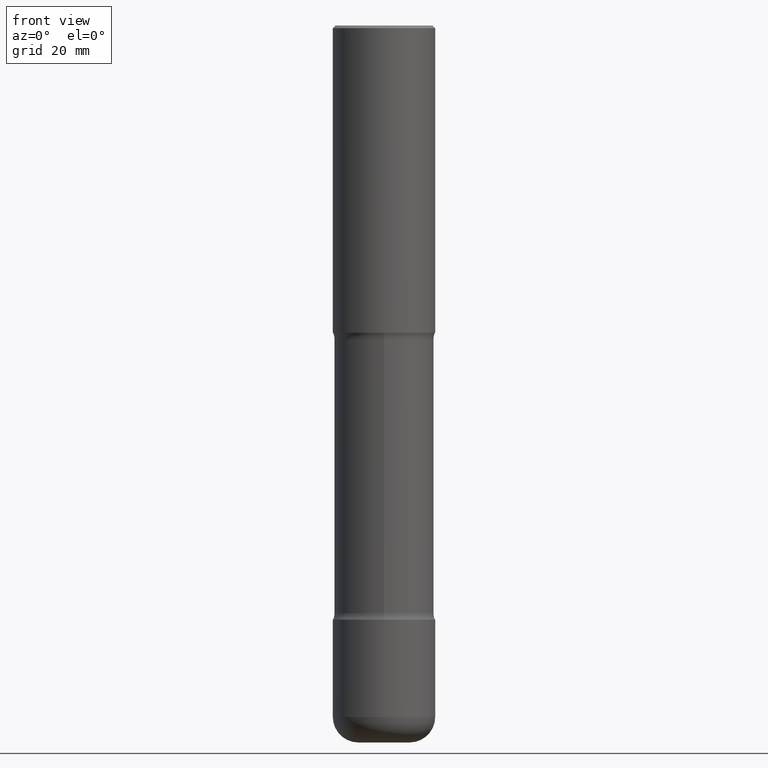
[diagram: clean part render]
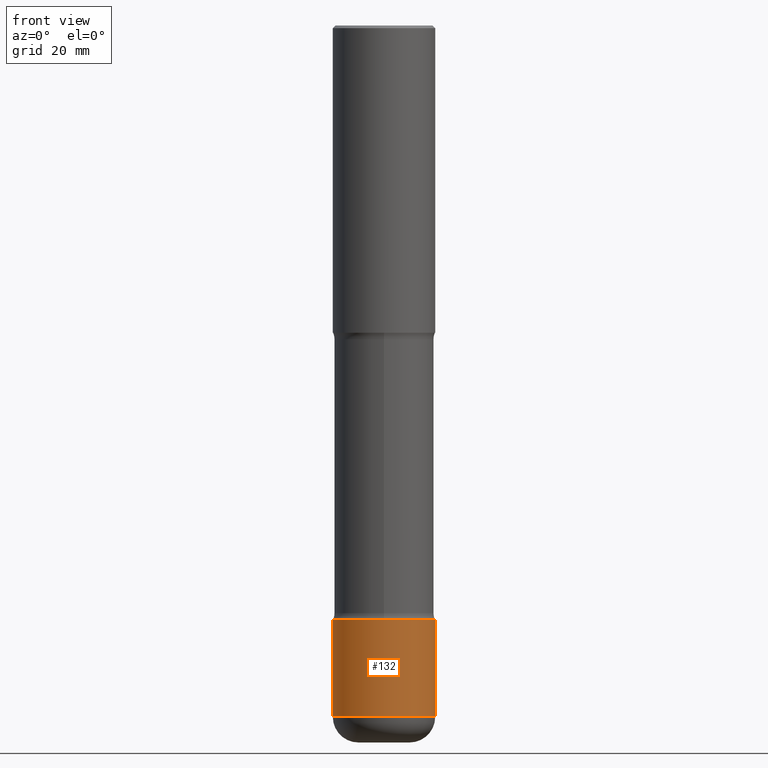
[diagram: same view with one face highlighted and labeled with its STEP entity id]
A machine part, front view. The second image highlights one B-rep face of the part: STEP entity #132.
In plain terms, the highlighted cylindrical surface (partial cylindrical patch) has radius 10 mm, axis along (-0, 0, 1).
Its self-contained STEP definition (entity closure, byte-faithful):
#11 = DIRECTION ( 'NONE',  ( -2.445468806185136597E-29, 3.491481338843145583E-15, 1.000000000000000000 ) ) ;
#28 = AXIS2_PLACEMENT_3D ( 'NONE', #520, #473, #560 ) ;
#78 = ORIENTED_EDGE ( 'NONE', *, *, #552, .F. ) ;
#83 = LINE ( 'NONE', #251, #352 ) ;
#86 = DIRECTION ( 'NONE',  ( -2.445468806185136877E-29, 3.491481338843145188E-15, 1.000000000000000000 ) ) ;
#101 = LINE ( 'NONE', #489, #343 ) ;
#132 = ADVANCED_FACE ( 'NONE', ( #187 ), #281, .T. ) ;
#187 = FACE_OUTER_BOUND ( 'NONE', #316, .T. ) ;
#188 = CARTESIAN_POINT ( 'NONE',  ( 0.000000000000000000, 0.000000000000000000, 0.000000000000000000 ) ) ;
#225 = DIRECTION ( 'NONE',  ( 1.000000000000000000, -6.982962677686270655E-15, 0.000000000000000000 ) ) ;
#246 = VERTEX_POINT ( 'NONE', #424 ) ;
#251 = CARTESIAN_POINT ( 'NONE',  ( -0.3937000000000004940, 2.797406750687517942E-15, -1.936584745033358697E-29 ) ) ;
#268 = DIRECTION ( 'NONE',  ( 1.000000000000000000, -6.982962677686266711E-15, 4.876176775795935793E-29 ) ) ;
#270 = DIRECTION ( 'NONE',  ( -2.445468806185136877E-29, 3.491481338843145188E-15, 1.000000000000000000 ) ) ;
#274 = CIRCLE ( 'NONE', #28, 0.3937000000000006605 ) ;
#281 = CYLINDRICAL_SURFACE ( 'NONE', #383, 0.3937000000000004940 ) ;
#297 = VERTEX_POINT ( 'NONE', #319 ) ;
#299 = CIRCLE ( 'NONE', #398, 0.3937000000000004385 ) ;
#316 = EDGE_LOOP ( 'NONE', ( #504, #484, #547, #78 ) ) ;
#319 = CARTESIAN_POINT ( 'NONE',  ( 0.3937000000000004385, -1.869443853256785070E-14, -4.566900000000000404 ) ) ;
#343 = VECTOR ( 'NONE', #270, 39.37007874015748143 ) ;
#352 = VECTOR ( 'NONE', #86, 39.37007874015748143 ) ;
#370 = EDGE_CURVE ( 'NONE', #246, #535, #274, .T. ) ;
#383 = AXIS2_PLACEMENT_3D ( 'NONE', #188, #396, #268 ) ;
#393 = CARTESIAN_POINT ( 'NONE',  ( -0.3937000000000004385, -1.445365339640257918E-14, -4.566900000000000404 ) ) ;
#396 = DIRECTION ( 'NONE',  ( -2.445468806185136597E-29, 3.491481338843145583E-15, 1.000000000000000000 ) ) ;
#398 = AXIS2_PLACEMENT_3D ( 'NONE', #533, #11, #225 ) ;
#424 = CARTESIAN_POINT ( 'NONE',  ( -0.3937000000000007160, -1.575946741712991118E-14, -5.314899999999998847 ) ) ;
#445 = EDGE_CURVE ( 'NONE', #246, #499, #83, .T. ) ;
#473 = DIRECTION ( 'NONE',  ( -2.445468806185136597E-29, 3.491481338843145583E-15, 1.000000000000000000 ) ) ;
#484 = ORIENTED_EDGE ( 'NONE', *, *, #370, .T. ) ;
#489 = CARTESIAN_POINT ( 'NONE',  ( 0.3937000000000004940, -2.749192406205086766E-15, 1.919750796630862414E-29 ) ) ;
#491 = CARTESIAN_POINT ( 'NONE',  ( 0.3937000000000007160, -2.130606657402251786E-14, -5.314899999999998847 ) ) ;
#499 = VERTEX_POINT ( 'NONE', #393 ) ;
#504 = ORIENTED_EDGE ( 'NONE', *, *, #445, .F. ) ;
#520 = CARTESIAN_POINT ( 'NONE',  ( 1.299742215799337779E-28, -1.855687416781742833E-14, -5.314899999999998847 ) ) ;
#521 = EDGE_CURVE ( 'NONE', #535, #297, #101, .T. ) ;
#533 = CARTESIAN_POINT ( 'NONE',  ( 1.116821149096690103E-28, -1.594524612636276117E-14, -4.566900000000000404 ) ) ;
#535 = VERTEX_POINT ( 'NONE', #491 ) ;
#547 = ORIENTED_EDGE ( 'NONE', *, *, #521, .T. ) ;
#552 = EDGE_CURVE ( 'NONE', #499, #297, #299, .T. ) ;
#560 = DIRECTION ( 'NONE',  ( 1.000000000000000000, -6.982962677686266711E-15, 0.000000000000000000 ) ) ;